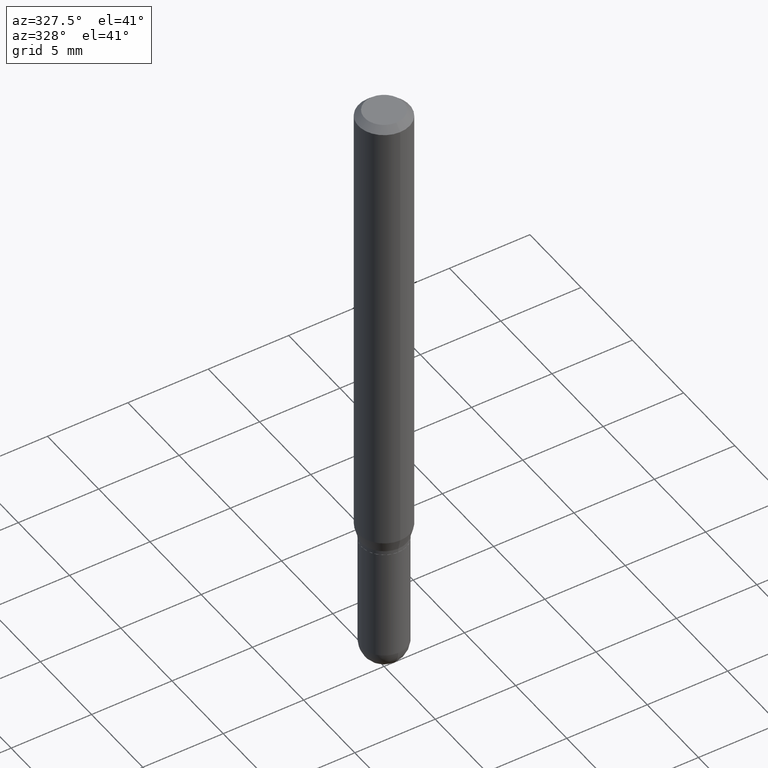
[diagram: clean part render]
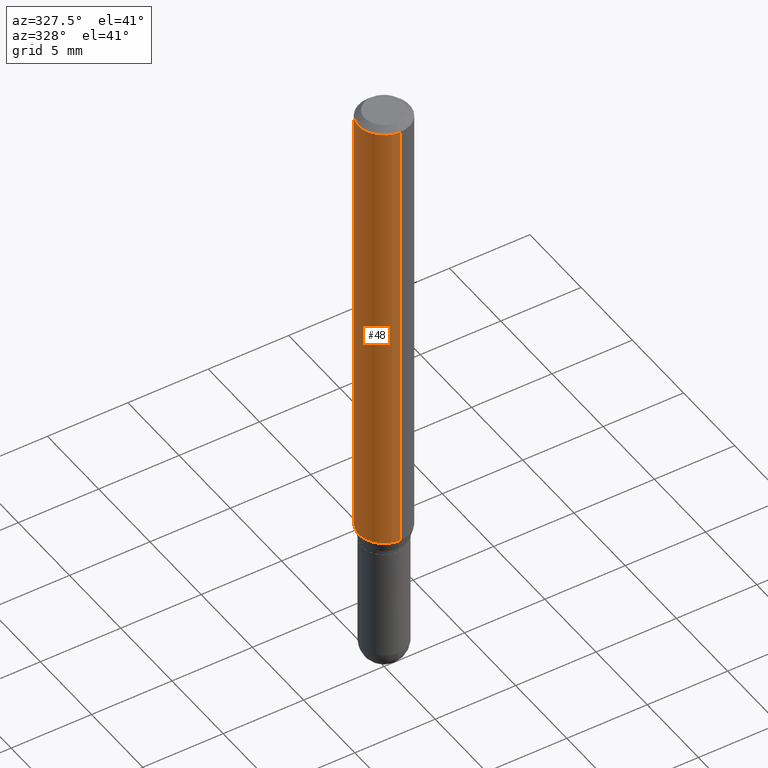
[diagram: same view with one face highlighted and labeled with its STEP entity id]
A machine part, auxiliary view. The second image highlights one B-rep face of the part: STEP entity #48.
In plain terms, the highlighted cylindrical surface (edge-blend (fillet) strip) has radius 1.5875 mm, axis along (-0, 0, 1).
Its self-contained STEP definition (entity closure, byte-faithful):
#22 = VECTOR ( 'NONE', #23, 39.37007874015748143 ) ;
#23 = DIRECTION ( 'NONE',  ( -2.445556750322185455E-29, 3.491355397833421565E-15, 1.000000000000000000 ) ) ;
#38 = DIRECTION ( 'NONE',  ( -2.445556750322185455E-29, 3.491355397833421565E-15, 1.000000000000000000 ) ) ;
#47 = CARTESIAN_POINT ( 'NONE',  ( -4.364351673553912750E-16, -0.06250000000000005551, -0.01500000000000011047 ) ) ;
#48 = ADVANCED_FACE ( 'NONE', ( #79 ), #77, .T. ) ;
#67 = ORIENTED_EDGE ( 'NONE', *, *, #263, .F. ) ;
#73 = DIRECTION ( 'NONE',  ( -2.445556750322185455E-29, 3.491355397833421960E-15, 1.000000000000000000 ) ) ;
#77 = CYLINDRICAL_SURFACE ( 'NONE', #265, 0.06250000000000000000 ) ;
#79 = FACE_OUTER_BOUND ( 'NONE', #280, .T. ) ;
#81 = VERTEX_POINT ( 'NONE', #281 ) ;
#106 = VECTOR ( 'NONE', #38, 39.37007874015748143 ) ;
#111 = CARTESIAN_POINT ( 'NONE',  ( 3.668335125483358950E-31, -5.237033096750247867E-17, -0.01500000000000032904 ) ) ;
#115 = DIRECTION ( 'NONE',  ( -2.445556750322185455E-29, 3.491355397833421960E-15, 1.000000000000000000 ) ) ;
#128 = LINE ( 'NONE', #332, #106 ) ;
#139 = EDGE_CURVE ( 'NONE', #331, #233, #167, .T. ) ;
#159 = DIRECTION ( 'NONE',  ( -2.445556750322185455E-29, 3.491355397833421960E-15, 1.000000000000000000 ) ) ;
#167 = LINE ( 'NONE', #414, #22 ) ;
#174 = DIRECTION ( 'NONE',  ( -6.982962677686265922E-15, -1.000000000000000000, 4.370956789862821150E-15 ) ) ;
#182 = ORIENTED_EDGE ( 'NONE', *, *, #266, .T. ) ;
#233 = VERTEX_POINT ( 'NONE', #47 ) ;
#263 = EDGE_CURVE ( 'NONE', #81, #233, #420, .T. ) ;
#265 = AXIS2_PLACEMENT_3D ( 'NONE', #320, #73, #469 ) ;
#266 = EDGE_CURVE ( 'NONE', #351, #331, #359, .T. ) ;
#280 = EDGE_LOOP ( 'NONE', ( #300, #182, #324, #67 ) ) ;
#281 = CARTESIAN_POINT ( 'NONE',  ( 4.440892098500904235E-16, 0.06249999999999995143, -0.01500000000000054588 ) ) ;
#292 = CARTESIAN_POINT ( 'NONE',  ( -4.364351673553640100E-16, -0.06250000000000395517, -1.132009618943233598 ) ) ;
#293 = AXIS2_PLACEMENT_3D ( 'NONE', #111, #159, #313 ) ;
#300 = ORIENTED_EDGE ( 'NONE', *, *, #452, .F. ) ;
#313 = DIRECTION ( 'NONE',  ( -6.982962677686265922E-15, -1.000000000000000000, 3.483106191921935554E-15 ) ) ;
#320 = CARTESIAN_POINT ( 'NONE',  ( 0.000000000000000000, 0.000000000000000000, 0.000000000000000000 ) ) ;
#324 = ORIENTED_EDGE ( 'NONE', *, *, #139, .T. ) ;
#331 = VERTEX_POINT ( 'NONE', #292 ) ;
#332 = CARTESIAN_POINT ( 'NONE',  ( 4.440892098500625669E-16, 0.06250000000000000000, -2.182097123645888725E-16 ) ) ;
#351 = VERTEX_POINT ( 'NONE', #366 ) ;
#359 = CIRCLE ( 'NONE', #443, 0.06250000000000000000 ) ;
#366 = CARTESIAN_POINT ( 'NONE',  ( 4.440892098500901277E-16, 0.06249999999999603789, -1.132009618943234264 ) ) ;
#414 = CARTESIAN_POINT ( 'NONE',  ( -4.364351673553916201E-16, -0.06250000000000000000, 2.182097123645888725E-16 ) ) ;
#420 = CIRCLE ( 'NONE', #293, 0.06250000000000000000 ) ;
#443 = AXIS2_PLACEMENT_3D ( 'NONE', #474, #115, #174 ) ;
#452 = EDGE_CURVE ( 'NONE', #351, #81, #128, .T. ) ;
#469 = DIRECTION ( 'NONE',  ( -6.982962677686265922E-15, -1.000000000000000000, 3.491355397833421960E-15 ) ) ;
#474 = CARTESIAN_POINT ( 'NONE',  ( 2.768393765036270570E-29, -3.952247893496815155E-15, -1.132009618943233820 ) ) ;